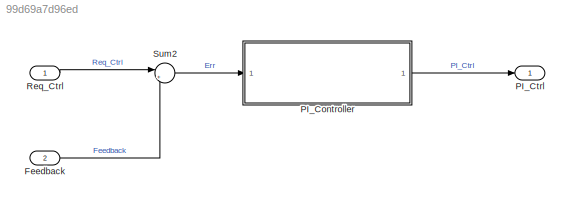
MODEL slx_99d69a7d96ed
KIND model
CONFIG AbsTol = auto
CONFIG EnableMultiTasking = off
CONFIG FixedStep = 0.001
CONFIG MaxStep = auto
CONFIG MinStep = auto
CONFIG RelTol = 1e-3
CONFIG SampleTimeConstraint = Unconstrained
CONFIG SolverName = FixedStepAuto
CONFIG StartTime = 0.0
CONFIG StopTime = 10.0
BLOCK [Inport] Feedback
  Port = 2
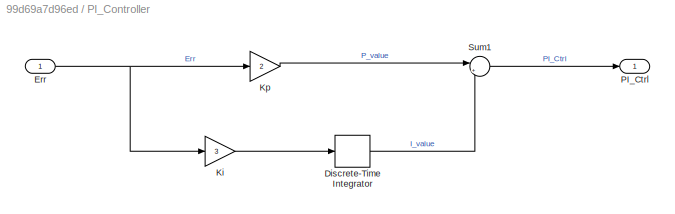
BLOCK [SubSystem] PI_Controller
  Ports = [1, 1]
  RequestExecContextInheritance = off
BLOCK [DiscreteIntegrator] PI_Controller/Discrete-Time Integrator
  ICPrevOutput = DiscIntNeverNeededParam
  ICPrevScaledInput = DiscIntNeverNeededParam
  InitialConditionSetting = Auto
  Ports = [1, 1]
  SampleTime = -1
BLOCK [Inport] PI_Controller/Err
BLOCK [Gain] PI_Controller/Ki
  Gain = 3
BLOCK [Gain] PI_Controller/Kp
  Gain = 2
BLOCK [Outport] PI_Controller/PI_Ctrl
BLOCK [Sum] PI_Controller/Sum1
  Inputs = |++
  Ports = [2, 1]
BLOCK [Outport] PI_Ctrl
BLOCK [Inport] Req_Ctrl
BLOCK [Sum] Sum2
  Inputs = |+-
  Ports = [2, 1]
LINE Feedback:1 -> Sum2:2
LINE PI_Controller/Discrete-Time Integrator:1 -> PI_Controller/Sum1:2
NET PI_Controller/Err:1 -> PI_Controller/Ki:1, PI_Controller/Kp:1
LINE PI_Controller/Ki:1 -> PI_Controller/Discrete-Time Integrator:1
LINE PI_Controller/Kp:1 -> PI_Controller/Sum1:1
LINE PI_Controller/Sum1:1 -> PI_Controller/PI_Ctrl:1
LINE PI_Controller:1 -> PI_Ctrl:1
LINE Req_Ctrl:1 -> Sum2:1
LINE Sum2:1 -> PI_Controller:1
note: NET lines group one-source signal fan-out (src -> all destinations, sorted); 1:1 wires keep LINE
